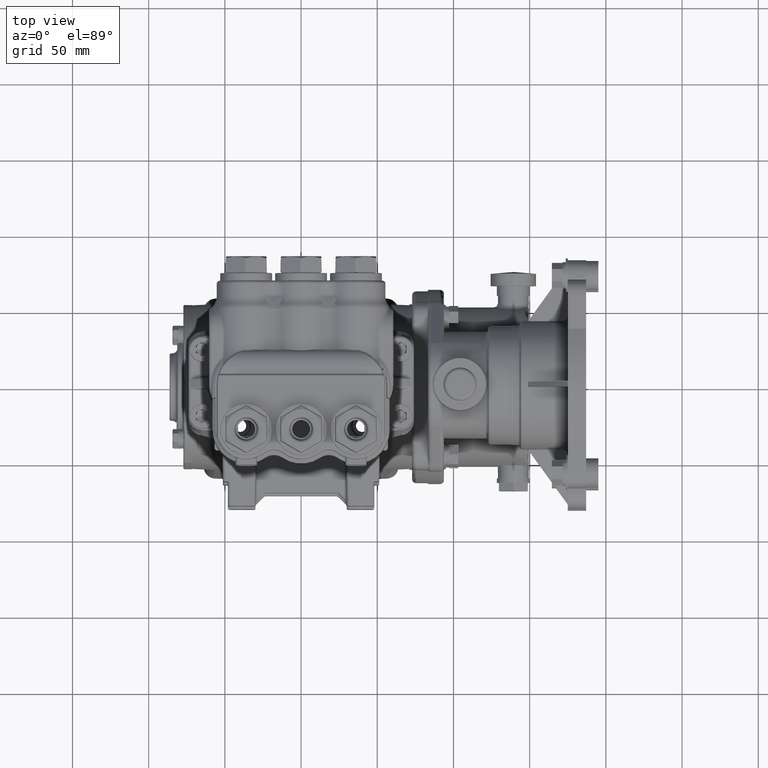
[diagram: clean part render]
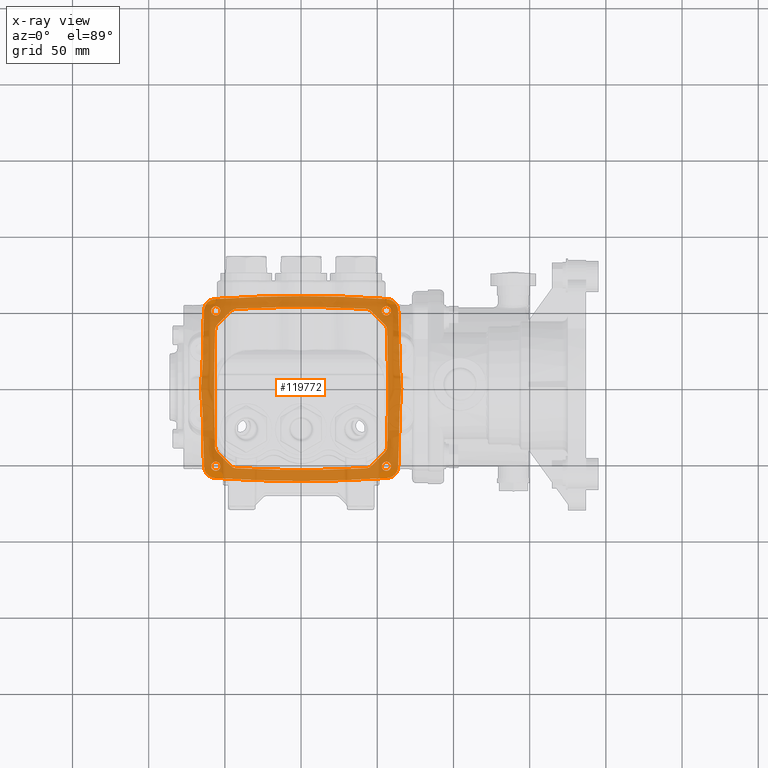
[diagram: x-ray — body ghosted, one internal face saturated and labeled with its STEP entity id]
A machine part, top view, then the same camera in x-ray: the body is ghosted and one INTERNAL B-rep face — a face not visible from any outside direction — is saturated and labeled: STEP entity #119772.
In plain terms, the highlighted planar face has unit normal (0, 0, 1).
Its self-contained STEP definition (entity closure, byte-faithful):
#13 = DIRECTION ( 'NONE',  ( -1.000000000000000000, 1.216804434989171568E-13, 5.302127228476524804E-18 ) ) ;
#74 = DIRECTION ( 'NONE',  ( 1.000000000000000000, 0.000000000000000000, -4.382719174871368785E-18 ) ) ;
#426 = ORIENTED_EDGE ( 'NONE', *, *, #93136, .F. ) ;
#474 = CARTESIAN_POINT ( 'NONE',  ( -2.219825723293632702, -1.530001510944977605, -2.165354330708661124 ) ) ;
#734 = DIRECTION ( 'NONE',  ( 4.382719174871368785E-18, 5.544652149419485530E-17, 1.000000000000000000 ) ) ;
#1004 = CARTESIAN_POINT ( 'NONE',  ( 2.366018722821676690, 2.264324669307097970, -2.165354330708661568 ) ) ;
#1016 = VERTEX_POINT ( 'NONE', #26456 ) ;
#1083 = CIRCLE ( 'NONE', #117644, 30.92519685039370358 ) ;
#1084 = CARTESIAN_POINT ( 'NONE',  ( -2.221682597448173535, -1.515130234257967556, -2.165354330708661568 ) ) ;
#1270 = DIRECTION ( 'NONE',  ( 1.000000000000000000, 0.000000000000000000, 0.000000000000000000 ) ) ;
#1300 = CARTESIAN_POINT ( 'NONE',  ( -0.3714624763966135612, -2.389304942255948028, -2.165354330708661568 ) ) ;
#1378 = CARTESIAN_POINT ( 'NONE',  ( -2.504556795817793446, 2.055155352968323079, -2.165354330708661568 ) ) ;
#1688 = ORIENTED_EDGE ( 'NONE', *, *, #105582, .F. ) ;
#1700 = CARTESIAN_POINT ( 'NONE',  ( -2.196755736665824799, -1.601098465890254952, -2.165354330708661568 ) ) ;
#1995 = CARTESIAN_POINT ( 'NONE',  ( 2.204724409448818534, -2.007874015748031482, -2.165354330708661568 ) ) ;
#2080 = EDGE_CURVE ( 'NONE', #40277, #66505, #118811, .T. ) ;
#2170 = VERTEX_POINT ( 'NONE', #79695 ) ;
#2491 = CARTESIAN_POINT ( 'NONE',  ( -2.086614173228346303, 2.007874015748031482, -2.165354330708661568 ) ) ;
#2588 = CARTESIAN_POINT ( 'NONE',  ( -2.504511574974332522, -2.055465809160681445, -2.165354330708661568 ) ) ;
#3109 = EDGE_CURVE ( 'NONE', #59524, #2170, #61564, .T. ) ;
#3675 = VECTOR ( 'NONE', #16743, 39.37007874015748854 ) ;
#4674 = CARTESIAN_POINT ( 'NONE',  ( 2.507699095000501810, 2.018276345781059522, -2.165354330708661568 ) ) ;
#4792 = B_SPLINE_CURVE_WITH_KNOTS ( 'NONE', 3,
 ( #111564, #16306, #53997, #91747, #92361, #102287, #55235, #92981, #112152, #27392 ),
 .UNSPECIFIED., .F., .F.,
 ( 4, 2, 2, 2, 4 ),
 ( 0.000000000000000000, 0.2500000000000000000, 0.5000000000000000000, 0.7500000000000000000, 1.000000000000000000 ),
 .UNSPECIFIED. ) ;
#5224 = CARTESIAN_POINT ( 'NONE',  ( -2.152598785039741891, 1.660952057778921409, -2.165354330708661568 ) ) ;
#5335 = EDGE_LOOP ( 'NONE', ( #97826, #32603 ) ) ;
#5634 = CARTESIAN_POINT ( 'NONE',  ( 2.504511574974339627, -2.055465809160683666, -2.165354330708661124 ) ) ;
#6064 = AXIS2_PLACEMENT_3D ( 'NONE', #78526, #58147, #11774 ) ;
#6155 = CARTESIAN_POINT ( 'NONE',  ( 0.3714624763966135612, -2.389304942255947584, -2.165354330708661568 ) ) ;
#6191 = EDGE_CURVE ( 'NONE', #41981, #75696, #91401, .T. ) ;
#6828 = AXIS2_PLACEMENT_3D ( 'NONE', #45245, #74282, #74 ) ;
#7457 = CARTESIAN_POINT ( 'NONE',  ( -1.855891039598183134, 2.336065548150338511, -2.165354330708661568 ) ) ;
#7469 = CARTESIAN_POINT ( 'NONE',  ( -2.543265006702944753, 0.6403266331639345665, -2.165354330708661568 ) ) ;
#7572 = CARTESIAN_POINT ( 'NONE',  ( -2.543265006702933650, -0.6403266331650486753, -2.165354330708661568 ) ) ;
#8095 = CARTESIAN_POINT ( 'NONE',  ( -2.543932861997212136, -0.5865920787521244906, -2.165354330708662012 ) ) ;
#8104 = CARTESIAN_POINT ( 'NONE',  ( 2.189577504191285051, -1.614138010126627165, -2.165354330708661124 ) ) ;
#8119 = CARTESIAN_POINT ( 'NONE',  ( 0.7429143685551328202, 2.382658802404135745, -2.165354330708661568 ) ) ;
#9060 = ORIENTED_EDGE ( 'NONE', *, *, #93380, .F. ) ;
#9071 = CARTESIAN_POINT ( 'NONE',  ( 1.775335066388156413, 2.029552431919218858, -2.165354330708661568 ) ) ;
#9165 = CARTESIAN_POINT ( 'NONE',  ( -2.163204215270329467, -1.650379664719830330, -2.165354330708661124 ) ) ;
#9303 = CARTESIAN_POINT ( 'NONE',  ( 2.244982819985745337, -2.308120272099379200, -2.165354330708661568 ) ) ;
#9477 = DIRECTION ( 'NONE',  ( 4.382719174871368785E-18, 5.544652149419485530E-17, 1.000000000000000000 ) ) ;
#9695 = CARTESIAN_POINT ( 'NONE',  ( 1.665298053507368259, 2.061429151741544619, -2.165354330708661568 ) ) ;
#10016 = EDGE_CURVE ( 'NONE', #17053, #27013, #1083, .T. ) ;
#10175 = ORIENTED_EDGE ( 'NONE', *, *, #66754, .T. ) ;
#10581 = VERTEX_POINT ( 'NONE', #36186 ) ;
#10882 = LINE ( 'NONE', #39321, #33163 ) ;
#10907 = CARTESIAN_POINT ( 'NONE',  ( 2.490438297128287903, 2.108490976394182148, -2.165354330708662456 ) ) ;
#11193 = CARTESIAN_POINT ( 'NONE',  ( 1.799393356314523462, -2.013057209752563192, -2.165354330708661124 ) ) ;
#11370 = EDGE_LOOP ( 'NONE', ( #110919, #426 ) ) ;
#11774 = DIRECTION ( 'NONE',  ( -1.000000000000000000, 0.000000000000000000, 0.000000000000000000 ) ) ;
#11874 = CARTESIAN_POINT ( 'NONE',  ( -2.506969314277190275, -2.036892271272477295, -2.165354330708661568 ) ) ;
#11891 = CARTESIAN_POINT ( 'NONE',  ( 2.152598785039734341, -1.660952057778923185, -2.165354330708661568 ) ) ;
#12243 = B_SPLINE_CURVE_WITH_KNOTS ( 'NONE', 3,
 ( #112459, #9165, #30741, #58561, #1700, #85201, #96945, #474, #1084, #76512 ),
 .UNSPECIFIED., .F., .F.,
 ( 4, 2, 2, 2, 4 ),
 ( -1.000000000000000000, -0.7500000000000000000, -0.5000000000000000000, -0.2500000000000000000, -0.000000000000000000 ),
 .UNSPECIFIED. ) ;
#12486 = CARTESIAN_POINT ( 'NONE',  ( -2.476246556831379841, -2.142842966116451198, -2.165354330708661124 ) ) ;
#12627 = ORIENTED_EDGE ( 'NONE', *, *, #2080, .F. ) ;
#13807 = CARTESIAN_POINT ( 'NONE',  ( 2.476258197580702092, 2.142836032510803790, -2.165354330708661124 ) ) ;
#14499 = DIRECTION ( 'NONE',  ( -4.382719174871368785E-18, -5.544652149419485530E-17, -1.000000000000000000 ) ) ;
#14685 = CARTESIAN_POINT ( 'NONE',  ( -1.819865019293829489, 1.992649318428512339, -2.165354330708661568 ) ) ;
#14693 = CARTESIAN_POINT ( 'NONE',  ( -2.322834645669291209, -2.007874015748031482, -2.165354330708661568 ) ) ;
#14783 = EDGE_CURVE ( 'NONE', #112804, #17017, #63745, .T. ) ;
#15002 = CARTESIAN_POINT ( 'NONE',  ( 2.299159994477764979, 2.295707594504621252, -2.165354330708661568 ) ) ;
#15065 = CARTESIAN_POINT ( 'NONE',  ( -2.299159994477765423, 2.295707594504620808, -2.165354330708661568 ) ) ;
#15523 = CARTESIAN_POINT ( 'NONE',  ( 2.467332750831509269, -2.159359728066985618, -2.165354330708661124 ) ) ;
#15722 = CARTESIAN_POINT ( 'NONE',  ( -2.172818252056210930, 1.638785034891005798, -2.165354330708661124 ) ) ;
#15780 = B_SPLINE_CURVE_WITH_KNOTS ( 'NONE', 3,
 ( #104636, #29739, #68690, #21060, #1300, #84808 ),
 .UNSPECIFIED., .F., .F.,
 ( 4, 2, 4 ),
 ( 0.000000000000000000, 0.02829432713783162912, 0.05658865427566325823 ),
 .UNSPECIFIED. ) ;
#15835 = VERTEX_POINT ( 'NONE', #106994 ) ;
#16137 = CARTESIAN_POINT ( 'NONE',  ( 2.349811279969611810, -2.273828208019544217, -2.165354330708661124 ) ) ;
#16306 = CARTESIAN_POINT ( 'NONE',  ( 2.221684838214001978, 1.515053755850700457, -2.165354330708661124 ) ) ;
#16740 = CARTESIAN_POINT ( 'NONE',  ( -2.226399550609211797, -2.309455044778845334, -2.165354330708661124 ) ) ;
#16743 = DIRECTION ( 'NONE',  ( -0.7082089982551068585, 0.7060028433303210393, -3.604152067120824219E-17 ) ) ;
#16744 = CARTESIAN_POINT ( 'NONE',  ( 2.446962882100052195, -2.190037674934417034, -2.165354330708661124 ) ) ;
#16749 = CARTESIAN_POINT ( 'NONE',  ( -2.577239816458734456, -0.2126723048731455901, -2.165354330708661124 ) ) ;
#16844 = CARTESIAN_POINT ( 'NONE',  ( 2.577239816458734456, -0.2126723048731455901, -2.165354330708661124 ) ) ;
#17017 = VERTEX_POINT ( 'NONE', #70605 ) ;
#17053 = VERTEX_POINT ( 'NONE', #54450 ) ;
#17274 = VERTEX_POINT ( 'NONE', #43688 ) ;
#17356 = CARTESIAN_POINT ( 'NONE',  ( 2.208677786958054057, -1.573556101159421017, -2.165354330708661124 ) ) ;
#17454 = CARTESIAN_POINT ( 'NONE',  ( -2.226399550609211797, -2.309455044778845334, -2.165354330708661124 ) ) ;
#18002 = FACE_OUTER_BOUND ( 'NONE', #34758, .T. ) ;
#18044 = CARTESIAN_POINT ( 'NONE',  ( 2.555764106600797891, 0.4270891406804709911, -2.165354330708661124 ) ) ;
#18545 = CARTESIAN_POINT ( 'NONE',  ( 48.97637795275590378, -1.200613654401857639E-16, -2.165354330708661568 ) ) ;
#18629 = B_SPLINE_CURVE_WITH_KNOTS ( 'NONE', 3,
 ( #7469, #119443, #27228, #91582, #34690, #72421, #120666, #110188, #64978, #111404, #25415, #16749, #35915, #110798, #44580, #55066, #8095, #64359 ),
 .UNSPECIFIED., .F., .F.,
 ( 4, 2, 2, 2, 2, 2, 2, 2, 4 ),
 ( 0.000000000000000000, 0.004069019700830752914, 0.008138039401661505828, 0.01220705910249225874, 0.01627607880332301166, 0.02034509850415376631, 0.02441411820498451749, 0.02848313790581526866, 0.03255215760664602331 ),
 .UNSPECIFIED. ) ;
#18706 = CARTESIAN_POINT ( 'NONE',  ( -2.506969276822858195, 2.036893229126701677, -2.165354330708661568 ) ) ;
#19070 = CARTESIAN_POINT ( 'NONE',  ( -48.97637795275590378, -1.200613654401857639E-16, -2.165354330708661124 ) ) ;
#19143 = B_SPLINE_CURVE_WITH_KNOTS ( 'NONE', 3,
 ( #97154, #115096, #41474, #40242, #11193, #79174 ),
 .UNSPECIFIED., .F., .F.,
 ( 4, 2, 4 ),
 ( 0.000000000000000000, 0.5000000000000000000, 1.000000000000000000 ),
 .UNSPECIFIED. ) ;
#19408 = VERTEX_POINT ( 'NONE', #11891 ) ;
#19903 = EDGE_CURVE ( 'NONE', #120912, #15835, #92621, .T. ) ;
#19923 = CARTESIAN_POINT ( 'NONE',  ( -2.498518759619862806, 2.082038469294607896, -2.165354330708661568 ) ) ;
#19924 = DIRECTION ( 'NONE',  ( -4.382719174871368785E-18, -5.544652149419485530E-17, -1.000000000000000000 ) ) ;
#20153 = CARTESIAN_POINT ( 'NONE',  ( 2.446878316306271284, 2.189458419480109885, -2.165354330708660680 ) ) ;
#21059 = CARTESIAN_POINT ( 'NONE',  ( -1.665298053507381582, -2.061429151741539734, -2.165354330708661568 ) ) ;
#21060 = CARTESIAN_POINT ( 'NONE',  ( -0.7429160555722719161, -2.382680048062203237, -2.165354330708661124 ) ) ;
#21198 = VERTEX_POINT ( 'NONE', #122367 ) ;
#21753 = CARTESIAN_POINT ( 'NONE',  ( -2.496376326611512209, -2.091466151007959073, -2.165354330708661124 ) ) ;
#21770 = CIRCLE ( 'NONE', #47460, 0.1181102362204725503 ) ;
#22996 = AXIS2_PLACEMENT_3D ( 'NONE', #48248, #67443, #1270 ) ;
#23669 = CARTESIAN_POINT ( 'NONE',  ( 2.467526665887781245, 2.159020891313296886, -2.165354330708661124 ) ) ;
#23974 = EDGE_CURVE ( 'NONE', #94061, #21198, #96856, .T. ) ;
#25383 = CARTESIAN_POINT ( 'NONE',  ( -1.694168858347929296, 2.059872222132872022, -2.165354330708661568 ) ) ;
#25404 = CARTESIAN_POINT ( 'NONE',  ( 2.409413171279609411, -2.230725825977088572, -2.165354330708660680 ) ) ;
#25415 = CARTESIAN_POINT ( 'NONE',  ( -2.584798791261073259, -0.1056861792405178191, -2.165354330708661568 ) ) ;
#25559 = CARTESIAN_POINT ( 'NONE',  ( -2.349825550757512982, 2.273812584395070502, -2.165354330708661568 ) ) ;
#25742 = CARTESIAN_POINT ( 'NONE',  ( -1.722516782334198693, -2.053050197350273720, -2.165354330708661568 ) ) ;
#26028 = CARTESIAN_POINT ( 'NONE',  ( 2.222123512036451753, -1.500081608862754656, -2.165354330708661568 ) ) ;
#26166 = CARTESIAN_POINT ( 'NONE',  ( -2.435291354646366813, 2.203911179097557405, -2.165354330708661568 ) ) ;
#26280 = AXIS2_PLACEMENT_3D ( 'NONE', #119009, #14499, #52195 ) ;
#26355 = CIRCLE ( 'NONE', #56023, 0.1181102362204725503 ) ;
#26456 = CARTESIAN_POINT ( 'NONE',  ( -2.222123512036451753, -1.500081608862754656, -2.165354330708661568 ) ) ;
#26677 = FACE_BOUND ( 'NONE', #92912, .T. ) ;
#26774 = CARTESIAN_POINT ( 'NONE',  ( -2.316431223136201201, 2.289459300434597999, -2.165354330708661124 ) ) ;
#26966 = CARTESIAN_POINT ( 'NONE',  ( -1.775351250857132968, -2.029543694701740897, -2.165354330708661124 ) ) ;
#27013 = VERTEX_POINT ( 'NONE', #42814 ) ;
#27228 = CARTESIAN_POINT ( 'NONE',  ( -2.547149771677712948, 0.5335505165541405415, -2.165354330708661568 ) ) ;
#27318 = CARTESIAN_POINT ( 'NONE',  ( 2.571859199282208852, 0.2676042894716209597, -2.165354330708661124 ) ) ;
#27392 = CARTESIAN_POINT ( 'NONE',  ( 2.152598785039741891, 1.660952057778921409, -2.165354330708661568 ) ) ;
#27630 = CARTESIAN_POINT ( 'NONE',  ( -2.204724409448818534, -2.007874015748031482, -2.165354330708661568 ) ) ;
#27914 = EDGE_CURVE ( 'NONE', #30680, #111252, #75082, .T. ) ;
#28213 = CARTESIAN_POINT ( 'NONE',  ( 1.722511925836797575, 2.053050820824780853, -2.165354330708661124 ) ) ;
#29739 = CARTESIAN_POINT ( 'NONE',  ( -1.855892260071492661, -2.336067316222200763, -2.165354330708661124 ) ) ;
#29899 = AXIS2_PLACEMENT_3D ( 'NONE', #18545, #47008, #13 ) ;
#30680 = VERTEX_POINT ( 'NONE', #72109 ) ;
#30741 = CARTESIAN_POINT ( 'NONE',  ( -2.172724549754320833, -1.638897227845798499, -2.165354330708661568 ) ) ;
#30894 = LINE ( 'NONE', #97722, #113099 ) ;
#31552 = CARTESIAN_POINT ( 'NONE',  ( 2.543265006702933650, -0.6403266331650486753, -2.165354330708661568 ) ) ;
#32603 = ORIENTED_EDGE ( 'NONE', *, *, #91117, .F. ) ;
#32773 = CARTESIAN_POINT ( 'NONE',  ( 1.855892260071492439, -2.336067316222202983, -2.165354330708661124 ) ) ;
#32938 = CARTESIAN_POINT ( 'NONE',  ( 2.506969276822858639, 2.036893229126701677, -2.165354330708661568 ) ) ;
#33158 = ORIENTED_EDGE ( 'NONE', *, *, #3109, .T. ) ;
#33163 = VECTOR ( 'NONE', #41153, 39.37007874015748143 ) ;
#33201 = VERTEX_POINT ( 'NONE', #93212 ) ;
#33416 = VERTEX_POINT ( 'NONE', #4674 ) ;
#33565 = AXIS2_PLACEMENT_3D ( 'NONE', #27630, #65978, #93220 ) ;
#33571 = DIRECTION ( 'NONE',  ( -4.382719174871368785E-18, -5.544652149419485530E-17, -1.000000000000000000 ) ) ;
#33671 = ORIENTED_EDGE ( 'NONE', *, *, #59764, .T. ) ;
#33857 = EDGE_CURVE ( 'NONE', #10581, #59524, #96324, .T. ) ;
#33866 = VERTEX_POINT ( 'NONE', #7572 ) ;
#34042 = ORIENTED_EDGE ( 'NONE', *, *, #58037, .T. ) ;
#34066 = CARTESIAN_POINT ( 'NONE',  ( -1.485093522122145515, 2.356044648000702679, -2.165354330708660235 ) ) ;
#34223 = CARTESIAN_POINT ( 'NONE',  ( -2.467526665887781245, 2.159020891313295998, -2.165354330708661124 ) ) ;
#34558 = B_SPLINE_CURVE_WITH_KNOTS ( 'NONE', 3,
 ( #74832, #121842, #119415, #110154, #25383, #63730 ),
 .UNSPECIFIED., .F., .F.,
 ( 4, 2, 4 ),
 ( -1.000000000000000000, -0.5000000000000000000, -0.000000000000000000 ),
 .UNSPECIFIED. ) ;
#34605 = CARTESIAN_POINT ( 'NONE',  ( 2.086614173228346303, 2.007874015748031482, -2.165354330708661568 ) ) ;
#34680 = CARTESIAN_POINT ( 'NONE',  ( 2.506969314277190275, -2.036892271272478183, -2.165354330708661568 ) ) ;
#34690 = CARTESIAN_POINT ( 'NONE',  ( -2.561200214332288727, 0.3739337529956902051, -2.165354330708661568 ) ) ;
#34758 = EDGE_LOOP ( 'NONE', ( #94618, #56272, #91576, #97808, #116631, #9060, #12627, #81181, #112567, #64711, #119392, #33671, #112416, #33158 ) ) ;
#34781 = CARTESIAN_POINT ( 'NONE',  ( 2.547149771677712948, 0.5335505165541405415, -2.165354330708661568 ) ) ;
#34833 = CARTESIAN_POINT ( 'NONE',  ( -2.452307318315940066, 2.182010947410366608, -2.165354330708662456 ) ) ;
#35013 = CARTESIAN_POINT ( 'NONE',  ( -1.665298053507381582, -2.061429151741539734, -2.165354330708661568 ) ) ;
#35324 = DIRECTION ( 'NONE',  ( -4.382719174871368785E-18, -5.544652149419485530E-17, -1.000000000000000000 ) ) ;
#35326 = CARTESIAN_POINT ( 'NONE',  ( 1.485093522122145515, 2.356044648000701791, -2.165354330708661124 ) ) ;
#35396 = CARTESIAN_POINT ( 'NONE',  ( 2.586966824328970738, 0.05466901610737712192, -2.165354330708661568 ) ) ;
#35495 = CARTESIAN_POINT ( 'NONE',  ( -2.189739141668258782, 1.613874688228873922, -2.165354330708661568 ) ) ;
#35778 = EDGE_CURVE ( 'NONE', #105928, #47767, #104799, .T. ) ;
#35901 = CARTESIAN_POINT ( 'NONE',  ( -2.226398268440926920, 2.309454876264962042, -2.165354330708661568 ) ) ;
#35915 = CARTESIAN_POINT ( 'NONE',  ( -2.572012682349583468, -0.2660530168385782934, -2.165354330708661568 ) ) ;
#36180 = DIRECTION ( 'NONE',  ( 4.382719174871368785E-18, 5.544652149419485530E-17, 1.000000000000000000 ) ) ;
#36186 = CARTESIAN_POINT ( 'NONE',  ( 2.543265006702944753, 0.6403266331639345665, -2.165354330708661568 ) ) ;
#36613 = CARTESIAN_POINT ( 'NONE',  ( 2.543932861997212136, -0.5865920787521244906, -2.165354330708662012 ) ) ;
#37241 = B_SPLINE_CURVE_WITH_KNOTS ( 'NONE', 3,
 ( #77047, #117699, #107868, #15002, #104954, #61985, #1004, #38727, #98560, #86952, #76434, #20153, #114810, #23669, #13807, #57874, #10907, #79945, #48603, #86321, #32938, #70691 ),
 .UNSPECIFIED., .F., .F.,
 ( 4, 2, 2, 2, 2, 2, 2, 2, 2, 2, 4 ),
 ( 0.000000000000000000, 0.001417687121495785378, 0.002835374242991570756, 0.004253061364487355916, 0.005670748485983141511, 0.006379592046731040814, 0.007088435607478941851, 0.008506122728974730915, 0.009214966289722622411, 0.009923809850470515642, 0.01134149697196631251 ),
 .UNSPECIFIED. ) ;
#37462 = B_SPLINE_CURVE_WITH_KNOTS ( 'NONE', 3,
 ( #96616, #11874, #2588, #21753, #60670, #12486, #40917, #50184, #50794, #87923, #116395, #69383, #55054, #101510, #110175, #43968, #110786, #82274, #71811, #92193, #119430, #16740 ),
 .UNSPECIFIED., .F., .F.,
 ( 4, 2, 2, 2, 2, 2, 2, 2, 2, 2, 4 ),
 ( 2.017058999513409408E-16, 0.001417373402076419668, 0.002834746804152637675, 0.004252120206228855899, 0.005669493608305074123, 0.006378180309343174995, 0.007086867010381276734, 0.008504240412457479345, 0.009212927113495569809, 0.009921613814533660272, 0.01133898721660983946 ),
 .UNSPECIFIED. ) ;
#38127 = EDGE_CURVE ( 'NONE', #17274, #19408, #10882, .T. ) ;
#38459 = DIRECTION ( 'NONE',  ( -1.000000000000000000, 0.000000000000000000, 5.333507996854134523E-18 ) ) ;
#38727 = CARTESIAN_POINT ( 'NONE',  ( 2.395949701857928993, 2.242892435977617893, -2.165354330708661568 ) ) ;
#39321 = CARTESIAN_POINT ( 'NONE',  ( 2.219270343645323162, -1.594488188976376897, -2.165354330708661568 ) ) ;
#39978 = EDGE_LOOP ( 'NONE', ( #120848, #83192 ) ) ;
#40158 = CARTESIAN_POINT ( 'NONE',  ( -2.507699084655221622, -2.018276609678203659, -2.165354330708661568 ) ) ;
#40242 = CARTESIAN_POINT ( 'NONE',  ( 1.775351250857132968, -2.029543694701740897, -2.165354330708661124 ) ) ;
#40277 = VERTEX_POINT ( 'NONE', #56686 ) ;
#40917 = CARTESIAN_POINT ( 'NONE',  ( -2.467332750831502164, -2.159359728066980733, -2.165354330708661568 ) ) ;
#41153 = DIRECTION ( 'NONE',  ( 0.7082089982551051932, 0.7060028433303228157, -4.224928298414653321E-17 ) ) ;
#41474 = CARTESIAN_POINT ( 'NONE',  ( 1.722516782334198693, -2.053050197350273720, -2.165354330708661568 ) ) ;
#41981 = VERTEX_POINT ( 'NONE', #2491 ) ;
#42814 = CARTESIAN_POINT ( 'NONE',  ( -1.665298053507368259, 2.061429151741544619, -2.165354330708661568 ) ) ;
#42896 = VERTEX_POINT ( 'NONE', #121921 ) ;
#43367 = CARTESIAN_POINT ( 'NONE',  ( 2.435460192130133095, -2.204361731283808190, -2.165354330708661124 ) ) ;
#43398 = CARTESIAN_POINT ( 'NONE',  ( 1.855891039598183134, 2.336065548150336291, -2.165354330708661568 ) ) ;
#43516 = CARTESIAN_POINT ( 'NONE',  ( -2.366018722821676690, 2.264324669307097526, -2.165354330708661124 ) ) ;
#43606 = CIRCLE ( 'NONE', #6064, 0.1181102362204725503 ) ;
#43639 = ORIENTED_EDGE ( 'NONE', *, *, #61801, .F. ) ;
#43688 = CARTESIAN_POINT ( 'NONE',  ( 1.819865019293845032, -1.992649318428517002, -2.165354330708661568 ) ) ;
#43871 = CARTESIAN_POINT ( 'NONE',  ( -2.152598785039734341, -1.660952057778923185, -2.165354330708661568 ) ) ;
#43968 = CARTESIAN_POINT ( 'NONE',  ( -2.324611947169684001, -2.285622141269472163, -2.165354330708661568 ) ) ;
#44073 = CARTESIAN_POINT ( 'NONE',  ( 2.561316277943267661, -0.3727956487488476300, -2.165354330708661124 ) ) ;
#44288 = AXIS2_PLACEMENT_3D ( 'NONE', #120062, #35324, #55086 ) ;
#44580 = CARTESIAN_POINT ( 'NONE',  ( -2.555849678708232542, -0.4261577759929520703, -2.165354330708661568 ) ) ;
#45203 = CARTESIAN_POINT ( 'NONE',  ( 2.196755736665824799, -1.601098465890254952, -2.165354330708661568 ) ) ;
#45245 = CARTESIAN_POINT ( 'NONE',  ( 7.003180397897975922E-33, -28.81889763779527414, -2.165354330708659791 ) ) ;
#45901 = CARTESIAN_POINT ( 'NONE',  ( 2.584672947388187314, 0.1079688259028910441, -2.165354330708661124 ) ) ;
#47008 = DIRECTION ( 'NONE',  ( 4.382719174871368785E-18, 5.544652149419485530E-17, 1.000000000000000000 ) ) ;
#47460 = AXIS2_PLACEMENT_3D ( 'NONE', #92267, #84193, #83575 ) ;
#47767 = VERTEX_POINT ( 'NONE', #81839 ) ;
#47990 = CIRCLE ( 'NONE', #26280, 51.22047244094488150 ) ;
#48153 = CIRCLE ( 'NONE', #62007, 51.52362204724409622 ) ;
#48192 = ORIENTED_EDGE ( 'NONE', *, *, #14783, .T. ) ;
#48248 = CARTESIAN_POINT ( 'NONE',  ( -2.204724409448818534, -2.007874015748031482, -2.165354330708661568 ) ) ;
#48603 = CARTESIAN_POINT ( 'NONE',  ( 2.498518759619863250, 2.082038469294607008, -2.165354330708661124 ) ) ;
#50097 = DIRECTION ( 'NONE',  ( -4.382719174871368785E-18, -5.544652149419485530E-17, -1.000000000000000000 ) ) ;
#50184 = CARTESIAN_POINT ( 'NONE',  ( -2.446962882100044201, -2.190037674934412149, -2.165354330708661124 ) ) ;
#50794 = CARTESIAN_POINT ( 'NONE',  ( -2.435460192130129986, -2.204361731283805970, -2.165354330708660680 ) ) ;
#51585 = CARTESIAN_POINT ( 'NONE',  ( -5.806167078742581744E-34, 2.389304932947936333, -2.165354330708661568 ) ) ;
#52195 = DIRECTION ( 'NONE',  ( 1.000000000000000000, 0.000000000000000000, -5.333507996854134523E-18 ) ) ;
#52790 = EDGE_CURVE ( 'NONE', #47767, #33416, #37241, .T. ) ;
#52866 = ORIENTED_EDGE ( 'NONE', *, *, #114965, .T. ) ;
#53224 = CARTESIAN_POINT ( 'NONE',  ( 2.388121428136718016, -2.248513551110576714, -2.165354330708661124 ) ) ;
#53822 = CARTESIAN_POINT ( 'NONE',  ( -5.806167078742581744E-34, 2.389304932947936333, -2.165354330708661568 ) ) ;
#53944 = EDGE_CURVE ( 'NONE', #42896, #66733, #85642, .T. ) ;
#53997 = CARTESIAN_POINT ( 'NONE',  ( 2.219844884467144119, 1.529848888678501106, -2.165354330708661568 ) ) ;
#54165 = B_SPLINE_CURVE_WITH_KNOTS ( 'NONE', 3,
 ( #53822, #120654, #120031, #34066, #7457, #35901 ),
 .UNSPECIFIED., .F., .F.,
 ( 4, 2, 4 ),
 ( 4.077884107204853351E-25, 0.02830452656250993793, 0.05660905312501987585 ),
 .UNSPECIFIED. ) ;
#54449 = CARTESIAN_POINT ( 'NONE',  ( 2.324611947169681336, -2.285622141269469054, -2.165354330708661124 ) ) ;
#54450 = CARTESIAN_POINT ( 'NONE',  ( 1.665298053507368259, 2.061429151741544619, -2.165354330708661568 ) ) ;
#54507 = PLANE ( 'NONE',  #6828 ) ;
#54603 = CARTESIAN_POINT ( 'NONE',  ( -2.429114812346702568, 2.210929334946595493, -2.165354330708661124 ) ) ;
#54999 = CIRCLE ( 'NONE', #64907, 51.22047244094488150 ) ;
#55054 = CARTESIAN_POINT ( 'NONE',  ( -2.388121428136717128, -2.248513551110574937, -2.165354330708661124 ) ) ;
#55066 = CARTESIAN_POINT ( 'NONE',  ( -2.547179575223919912, -0.5330576677038848521, -2.165354330708661124 ) ) ;
#55086 = DIRECTION ( 'NONE',  ( -1.000000000000000000, 0.000000000000000000, 0.000000000000000000 ) ) ;
#55126 = EDGE_CURVE ( 'NONE', #33201, #17274, #19143, .T. ) ;
#55169 = CARTESIAN_POINT ( 'NONE',  ( 2.587034883247977035, -0.05213171969899274560, -2.165354330708661124 ) ) ;
#55235 = CARTESIAN_POINT ( 'NONE',  ( 2.189739141668258782, 1.613874688228873922, -2.165354330708661568 ) ) ;
#56023 = AXIS2_PLACEMENT_3D ( 'NONE', #78530, #50097, #116297 ) ;
#56272 = ORIENTED_EDGE ( 'NONE', *, *, #23974, .T. ) ;
#56276 = CARTESIAN_POINT ( 'NONE',  ( 2.289817794028676357, -2.298164523753958299, -2.165354330708661124 ) ) ;
#56329 = FACE_BOUND ( 'NONE', #11370, .T. ) ;
#56432 = ORIENTED_EDGE ( 'NONE', *, *, #38127, .T. ) ;
#56562 = ORIENTED_EDGE ( 'NONE', *, *, #86699, .T. ) ;
#56686 = CARTESIAN_POINT ( 'NONE',  ( -2.507699095000501810, 2.018276345781059522, -2.165354330708661568 ) ) ;
#56886 = CARTESIAN_POINT ( 'NONE',  ( 2.298606430290601743, -2.295446092816229022, -2.165354330708661124 ) ) ;
#56938 = FACE_BOUND ( 'NONE', #39978, .T. ) ;
#57874 = CARTESIAN_POINT ( 'NONE',  ( 2.487175133690012974, 2.117236140601214789, -2.165354330708661568 ) ) ;
#57983 = B_SPLINE_CURVE_WITH_KNOTS ( 'NONE', 3,
 ( #110942, #80626, #71966, #15065, #26774, #25559, #43516, #81226, #119583, #54603, #26166, #63898, #34833, #34223, #109729, #62649, #100440, #67553, #19923, #1378, #18706, #66334 ),
 .UNSPECIFIED., .F., .F.,
 ( 4, 2, 2, 2, 2, 2, 2, 2, 2, 2, 4 ),
 ( 0.000000000000000000, 0.001417687121495792967, 0.002835374242991585934, 0.004253061364487378468, 0.005670748485983171869, 0.006379592046731067702, 0.007088435607478963535, 0.008506122728974756936, 0.009214966289722644963, 0.009923809850470531255, 0.01134149697196631772 ),
 .UNSPECIFIED. ) ;
#58037 = EDGE_CURVE ( 'NONE', #100632, #110630, #54999, .T. ) ;
#58147 = DIRECTION ( 'NONE',  ( -4.382719174871368785E-18, -5.544652149419485530E-17, -1.000000000000000000 ) ) ;
#58312 = B_SPLINE_CURVE_WITH_KNOTS ( 'NONE', 3,
 ( #74871, #74241, #112621, #8104, #45203, #17356, #101530, #72430, #63134, #26028 ),
 .UNSPECIFIED., .F., .F.,
 ( 4, 2, 2, 2, 4 ),
 ( 0.000000000000000000, 0.2500000000000000000, 0.5000000000000000000, 0.7500000000000000000, 1.000000000000000000 ),
 .UNSPECIFIED. ) ;
#58561 = CARTESIAN_POINT ( 'NONE',  ( -2.189577504191285051, -1.614138010126627165, -2.165354330708661124 ) ) ;
#58743 = CARTESIAN_POINT ( 'NONE',  ( -2.152598785039741891, 1.660952057778921409, -2.165354330708661568 ) ) ;
#58846 = B_SPLINE_CURVE_WITH_KNOTS ( 'NONE', 3,
 ( #63747, #34680, #5634, #108980, #100278, #61895, #15523, #16744, #43367, #82278, #25404, #81077, #53224, #100905, #16137, #54449, #92197, #56886, #56276, #74227, #9303, #66784 ),
 .UNSPECIFIED., .F., .F.,
 ( 4, 2, 2, 2, 2, 2, 2, 2, 2, 2, 4 ),
 ( 2.017058999513409408E-16, 0.001417373402076405357, 0.002834746804152609052, 0.004252120206228813398, 0.005669493608305016877, 0.006378180309343119483, 0.007086867010381220355, 0.008504240412457404752, 0.009212927113495503889, 0.009921613814533601292, 0.01133898721660979783 ),
 .UNSPECIFIED. ) ;
#58864 = CARTESIAN_POINT ( 'NONE',  ( 48.97637795275590378, -1.200613654401857639E-16, -2.165354330708661568 ) ) ;
#59524 = VERTEX_POINT ( 'NONE', #31552 ) ;
#59764 = EDGE_CURVE ( 'NONE', #33416, #10581, #48153, .T. ) ;
#59791 = AXIS2_PLACEMENT_3D ( 'NONE', #119691, #36180, #72674 ) ;
#60013 = CARTESIAN_POINT ( 'NONE',  ( 2.322834645669291209, -2.007874015748031482, -2.165354330708661568 ) ) ;
#60670 = CARTESIAN_POINT ( 'NONE',  ( -2.490721398707856249, -2.108940945489633734, -2.165354330708661568 ) ) ;
#61192 = DIRECTION ( 'NONE',  ( 4.382719174871368785E-18, 5.544652149419485530E-17, 1.000000000000000000 ) ) ;
#61564 = CIRCLE ( 'NONE', #77363, 51.52362204724409622 ) ;
#61801 = EDGE_CURVE ( 'NONE', #15835, #63233, #30894, .T. ) ;
#61895 = CARTESIAN_POINT ( 'NONE',  ( 2.476246556831378953, -2.142842966116449421, -2.165354330708661568 ) ) ;
#61985 = CARTESIAN_POINT ( 'NONE',  ( 2.349825550757514758, 2.273812584395075831, -2.165354330708661124 ) ) ;
#62007 = AXIS2_PLACEMENT_3D ( 'NONE', #19070, #83420, #121173 ) ;
#62599 = CARTESIAN_POINT ( 'NONE',  ( 2.543265006702944753, 0.6403266331639345665, -2.165354330708661568 ) ) ;
#62649 = CARTESIAN_POINT ( 'NONE',  ( -2.487175133690011197, 2.117236140601214345, -2.165354330708661124 ) ) ;
#62695 = CARTESIAN_POINT ( 'NONE',  ( -2.222123512036461079, 1.500081608862758653, -2.165354330708661568 ) ) ;
#63071 = CARTESIAN_POINT ( 'NONE',  ( -2.322834645669291209, 2.007874015748031482, -2.165354330708661568 ) ) ;
#63134 = CARTESIAN_POINT ( 'NONE',  ( 2.221682597448173535, -1.515130234257967556, -2.165354330708661568 ) ) ;
#63233 = VERTEX_POINT ( 'NONE', #43871 ) ;
#63475 = CARTESIAN_POINT ( 'NONE',  ( -1.799393356314523462, -2.013057209752563192, -2.165354330708661124 ) ) ;
#63730 = CARTESIAN_POINT ( 'NONE',  ( -1.665298053507368259, 2.061429151741544619, -2.165354330708661568 ) ) ;
#63745 = LINE ( 'NONE', #101514, #3675 ) ;
#63747 = CARTESIAN_POINT ( 'NONE',  ( 2.507699084655221622, -2.018276609678203659, -2.165354330708661568 ) ) ;
#63898 = CARTESIAN_POINT ( 'NONE',  ( -2.446878316306273504, 2.189458419480110329, -2.165354330708661568 ) ) ;
#64175 = ORIENTED_EDGE ( 'NONE', *, *, #55126, .T. ) ;
#64359 = CARTESIAN_POINT ( 'NONE',  ( -2.543265006702933650, -0.6403266331650486753, -2.165354330708661568 ) ) ;
#64711 = ORIENTED_EDGE ( 'NONE', *, *, #35778, .T. ) ;
#64907 = AXIS2_PLACEMENT_3D ( 'NONE', #85454, #734, #38459 ) ;
#64978 = CARTESIAN_POINT ( 'NONE',  ( -2.586966824328970738, 0.05466901610737712192, -2.165354330708661568 ) ) ;
#65626 = CARTESIAN_POINT ( 'NONE',  ( 2.222123512036461079, 1.500081608862758653, -2.165354330708661568 ) ) ;
#65978 = DIRECTION ( 'NONE',  ( 4.382719174871368785E-18, 5.544652149419485530E-17, 1.000000000000000000 ) ) ;
#66113 = CARTESIAN_POINT ( 'NONE',  ( 7.003180397897975922E-33, -28.81889763779527414, -2.165354330708659791 ) ) ;
#66334 = CARTESIAN_POINT ( 'NONE',  ( -2.507699095000501810, 2.018276345781059522, -2.165354330708661568 ) ) ;
#66505 = VERTEX_POINT ( 'NONE', #112649 ) ;
#66577 = EDGE_CURVE ( 'NONE', #111252, #30680, #76317, .T. ) ;
#66712 = DIRECTION ( 'NONE',  ( -1.000000000000000000, 0.000000000000000000, 0.000000000000000000 ) ) ;
#66733 = VERTEX_POINT ( 'NONE', #58743 ) ;
#66754 = EDGE_CURVE ( 'NONE', #120912, #33201, #68394, .T. ) ;
#66784 = CARTESIAN_POINT ( 'NONE',  ( 2.226399550609211797, -2.309455044778845334, -2.165354330708661568 ) ) ;
#67443 = DIRECTION ( 'NONE',  ( 4.382719174871368785E-18, 5.544652149419485530E-17, 1.000000000000000000 ) ) ;
#67553 = CARTESIAN_POINT ( 'NONE',  ( -2.496100249859894760, 2.090913945822137521, -2.165354330708661568 ) ) ;
#68394 = CIRCLE ( 'NONE', #119786, 30.92519685039370358 ) ;
#68616 = VERTEX_POINT ( 'NONE', #17454 ) ;
#68690 = CARTESIAN_POINT ( 'NONE',  ( -1.485094011898408617, -2.356032690953610231, -2.165354330708661568 ) ) ;
#69105 = AXIS2_PLACEMENT_3D ( 'NONE', #58864, #9477, #103510 ) ;
#69383 = CARTESIAN_POINT ( 'NONE',  ( -2.395374267148706160, -2.242822968506204440, -2.165354330708661124 ) ) ;
#70002 = VERTEX_POINT ( 'NONE', #40158 ) ;
#70526 = CARTESIAN_POINT ( 'NONE',  ( 0.7429160555722730264, -2.382680048062204570, -2.165354330708660235 ) ) ;
#70605 = CARTESIAN_POINT ( 'NONE',  ( 1.819865019293829489, 1.992649318428512339, -2.165354330708661568 ) ) ;
#70691 = CARTESIAN_POINT ( 'NONE',  ( 2.507699095000501810, 2.018276345781059522, -2.165354330708661568 ) ) ;
#70907 = VERTEX_POINT ( 'NONE', #85261 ) ;
#71666 = LINE ( 'NONE', #119281, #97155 ) ;
#71811 = CARTESIAN_POINT ( 'NONE',  ( -2.289817794028677245, -2.298164523753958743, -2.165354330708661124 ) ) ;
#71966 = CARTESIAN_POINT ( 'NONE',  ( -2.263466885730227141, 2.305047135850797790, -2.165354330708661568 ) ) ;
#72109 = CARTESIAN_POINT ( 'NONE',  ( -2.086614173228346303, -2.007874015748031482, -2.165354330708661568 ) ) ;
#72421 = CARTESIAN_POINT ( 'NONE',  ( -2.571859199282208852, 0.2676042894716209597, -2.165354330708661124 ) ) ;
#72430 = CARTESIAN_POINT ( 'NONE',  ( 2.219825723293632702, -1.530001510944977605, -2.165354330708661124 ) ) ;
#72517 = CARTESIAN_POINT ( 'NONE',  ( 2.584798791261073259, -0.1056861792405178191, -2.165354330708661568 ) ) ;
#72674 = DIRECTION ( 'NONE',  ( 1.000000000000000000, 0.000000000000000000, 0.000000000000000000 ) ) ;
#73280 = EDGE_LOOP ( 'NONE', ( #91010, #10175, #64175, #56432, #56562, #34042, #52866, #48192, #118061, #105179, #87002, #109958, #74806, #121118, #1688, #43639 ) ) ;
#73767 = CARTESIAN_POINT ( 'NONE',  ( -2.226398268440926920, 2.309454876264962042, -2.165354330708661568 ) ) ;
#74227 = CARTESIAN_POINT ( 'NONE',  ( 2.263153763336886559, -2.305104183887488833, -2.165354330708661124 ) ) ;
#74241 = CARTESIAN_POINT ( 'NONE',  ( 2.163204215270329467, -1.650379664719830330, -2.165354330708661124 ) ) ;
#74282 = DIRECTION ( 'NONE',  ( 4.382719174871368785E-18, 5.544652149419484913E-17, 1.000000000000000000 ) ) ;
#74325 = CARTESIAN_POINT ( 'NONE',  ( 2.572012682349583468, -0.2660530168385782934, -2.165354330708661568 ) ) ;
#74337 = VERTEX_POINT ( 'NONE', #60013 ) ;
#74806 = ORIENTED_EDGE ( 'NONE', *, *, #53944, .F. ) ;
#74832 = CARTESIAN_POINT ( 'NONE',  ( -1.819865019293829489, 1.992649318428512339, -2.165354330708661568 ) ) ;
#74871 = CARTESIAN_POINT ( 'NONE',  ( 2.152598785039734341, -1.660952057778923185, -2.165354330708661568 ) ) ;
#75082 = CIRCLE ( 'NONE', #33565, 0.1181102362204725503 ) ;
#75696 = VERTEX_POINT ( 'NONE', #63071 ) ;
#76317 = CIRCLE ( 'NONE', #22996, 0.1181102362204725503 ) ;
#76423 = CARTESIAN_POINT ( 'NONE',  ( 1.694168858347929296, 2.059872222132872022, -2.165354330708661568 ) ) ;
#76434 = CARTESIAN_POINT ( 'NONE',  ( 2.435291354646364592, 2.203911179097556960, -2.165354330708661568 ) ) ;
#76512 = CARTESIAN_POINT ( 'NONE',  ( -2.222123512036451753, -1.500081608862754656, -2.165354330708661568 ) ) ;
#76591 = DIRECTION ( 'NONE',  ( 4.382719174871368785E-18, 5.544652149419485530E-17, 1.000000000000000000 ) ) ;
#77047 = CARTESIAN_POINT ( 'NONE',  ( 2.226398268440926920, 2.309454876264962042, -2.165354330708661568 ) ) ;
#77363 = AXIS2_PLACEMENT_3D ( 'NONE', #79367, #33571, #117129 ) ;
#77658 = ORIENTED_EDGE ( 'NONE', *, *, #27914, .T. ) ;
#77922 = CARTESIAN_POINT ( 'NONE',  ( -7.003180397897975922E-33, 28.81889763779527414, -2.165354330708663344 ) ) ;
#78026 = DIRECTION ( 'NONE',  ( -1.000000000000000000, 0.000000000000000000, 0.000000000000000000 ) ) ;
#78526 = CARTESIAN_POINT ( 'NONE',  ( 2.204724409448818534, 2.007874015748031482, -2.165354330708661568 ) ) ;
#78530 = CARTESIAN_POINT ( 'NONE',  ( 2.204724409448818534, 2.007874015748031482, -2.165354330708661568 ) ) ;
#78543 = CARTESIAN_POINT ( 'NONE',  ( 5.806167078742583454E-34, -2.389304932947937665, -2.165354330708661568 ) ) ;
#79174 = CARTESIAN_POINT ( 'NONE',  ( 1.819865019293845032, -1.992649318428517002, -2.165354330708661568 ) ) ;
#79367 = CARTESIAN_POINT ( 'NONE',  ( -48.97637795275590378, -1.200613654401857639E-16, -2.165354330708661124 ) ) ;
#79515 = CIRCLE ( 'NONE', #89431, 0.1181102362204725503 ) ;
#79695 = CARTESIAN_POINT ( 'NONE',  ( 2.507699084655221622, -2.018276609678203659, -2.165354330708661568 ) ) ;
#79945 = CARTESIAN_POINT ( 'NONE',  ( 2.496100249859891651, 2.090913945822136188, -2.165354330708661124 ) ) ;
#80121 = EDGE_CURVE ( 'NONE', #70002, #68616, #37462, .T. ) ;
#80626 = CARTESIAN_POINT ( 'NONE',  ( -2.244982747217354913, 2.308120096729284310, -2.165354330708662012 ) ) ;
#80664 = CARTESIAN_POINT ( 'NONE',  ( -2.208785680751318203, 1.573256141254134599, -2.165354330708661568 ) ) ;
#81077 = CARTESIAN_POINT ( 'NONE',  ( 2.395374267148707492, -2.242822968506206216, -2.165354330708661124 ) ) ;
#81181 = ORIENTED_EDGE ( 'NONE', *, *, #105164, .F. ) ;
#81226 = CARTESIAN_POINT ( 'NONE',  ( -2.395949701857929437, 2.242892435977617893, -2.165354330708661568 ) ) ;
#81718 = CARTESIAN_POINT ( 'NONE',  ( 2.226398268440926920, 2.309454876264962042, -2.165354330708661568 ) ) ;
#81784 = CARTESIAN_POINT ( 'NONE',  ( 2.543265006702933650, -0.6403266331650486753, -2.165354330708661568 ) ) ;
#81839 = CARTESIAN_POINT ( 'NONE',  ( 2.226398268440926920, 2.309454876264962042, -2.165354330708661568 ) ) ;
#82274 = CARTESIAN_POINT ( 'NONE',  ( -2.298606430290602631, -2.295446092816230799, -2.165354330708662012 ) ) ;
#82278 = CARTESIAN_POINT ( 'NONE',  ( 2.416204707833615739, -2.224306327292284280, -2.165354330708660680 ) ) ;
#82303 = CARTESIAN_POINT ( 'NONE',  ( 0.3714619736455342935, 2.389304923639928635, -2.165354330708661124 ) ) ;
#82616 = CARTESIAN_POINT ( 'NONE',  ( -1.819865019293845032, -1.992649318428517002, -2.165354330708661568 ) ) ;
#83192 = ORIENTED_EDGE ( 'NONE', *, *, #111542, .T. ) ;
#83420 = DIRECTION ( 'NONE',  ( -4.382719174871368785E-18, -5.544652149419485530E-17, -1.000000000000000000 ) ) ;
#83575 = DIRECTION ( 'NONE',  ( 1.000000000000000000, 0.000000000000000000, 0.000000000000000000 ) ) ;
#84171 = FACE_BOUND ( 'NONE', #5335, .T. ) ;
#84193 = DIRECTION ( 'NONE',  ( 4.382719174871368785E-18, 5.544652149419485530E-17, 1.000000000000000000 ) ) ;
#84808 = CARTESIAN_POINT ( 'NONE',  ( 5.806167078742583454E-34, -2.389304932947937665, -2.165354330708661568 ) ) ;
#85167 = CARTESIAN_POINT ( 'NONE',  ( 2.222123512036451753, -1.500081608862754656, -2.165354330708661568 ) ) ;
#85201 = CARTESIAN_POINT ( 'NONE',  ( -2.208677786958054057, -1.573556101159421017, -2.165354330708661124 ) ) ;
#85261 = CARTESIAN_POINT ( 'NONE',  ( 2.322834645669291209, 2.007874015748031482, -2.165354330708661568 ) ) ;
#85454 = CARTESIAN_POINT ( 'NONE',  ( -48.97637795275590378, -1.200613654401857639E-16, -2.165354330708661124 ) ) ;
#85564 = VERTEX_POINT ( 'NONE', #73767 ) ;
#85642 = B_SPLINE_CURVE_WITH_KNOTS ( 'NONE', 3,
 ( #62695, #89967, #100482, #91772, #80664, #120244, #35495, #15722, #110986, #5224 ),
 .UNSPECIFIED., .F., .F.,
 ( 4, 2, 2, 2, 4 ),
 ( -1.000000000000000000, -0.7500000000000000000, -0.5000000000000000000, -0.2500000000000000000, -0.000000000000000000 ),
 .UNSPECIFIED. ) ;
#85819 = EDGE_CURVE ( 'NONE', #105928, #85564, #54165, .T. ) ;
#86321 = CARTESIAN_POINT ( 'NONE',  ( 2.504556795817793446, 2.055155352968323079, -2.165354330708661124 ) ) ;
#86699 = EDGE_CURVE ( 'NONE', #19408, #100632, #58312, .T. ) ;
#86952 = CARTESIAN_POINT ( 'NONE',  ( 2.429114812346700791, 2.210929334946594604, -2.165354330708661568 ) ) ;
#87002 = ORIENTED_EDGE ( 'NONE', *, *, #104326, .F. ) ;
#87923 = CARTESIAN_POINT ( 'NONE',  ( -2.416204707833613075, -2.224306327292282504, -2.165354330708660680 ) ) ;
#88899 = CARTESIAN_POINT ( 'NONE',  ( 2.152598785039741891, 1.660952057778921409, -2.165354330708661568 ) ) ;
#89431 = AXIS2_PLACEMENT_3D ( 'NONE', #1995, #19924, #78026 ) ;
#89967 = CARTESIAN_POINT ( 'NONE',  ( -2.221684838214001978, 1.515053755850700457, -2.165354330708661124 ) ) ;
#91002 = CARTESIAN_POINT ( 'NONE',  ( -5.806167078742581744E-34, 2.389304932947936333, -2.165354330708661568 ) ) ;
#91010 = ORIENTED_EDGE ( 'NONE', *, *, #19903, .F. ) ;
#91069 = CARTESIAN_POINT ( 'NONE',  ( 2.577078491238841806, 0.2144346540354758746, -2.165354330708661568 ) ) ;
#91117 = EDGE_CURVE ( 'NONE', #70907, #121046, #43606, .T. ) ;
#91401 = CIRCLE ( 'NONE', #59791, 0.1181102362204725503 ) ;
#91576 = ORIENTED_EDGE ( 'NONE', *, *, #111720, .F. ) ;
#91582 = CARTESIAN_POINT ( 'NONE',  ( -2.555764106600797891, 0.4270891406804709911, -2.165354330708661124 ) ) ;
#91747 = CARTESIAN_POINT ( 'NONE',  ( 2.213359582976154094, 1.559097908158796342, -2.165354330708661124 ) ) ;
#91772 = CARTESIAN_POINT ( 'NONE',  ( -2.213359582976154094, 1.559097908158796342, -2.165354330708661124 ) ) ;
#92193 = CARTESIAN_POINT ( 'NONE',  ( -2.263153763336887003, -2.305104183887489278, -2.165354330708661124 ) ) ;
#92197 = CARTESIAN_POINT ( 'NONE',  ( 2.315981751020904866, -2.289185744994252314, -2.165354330708661124 ) ) ;
#92267 = CARTESIAN_POINT ( 'NONE',  ( -2.204724409448818534, 2.007874015748031482, -2.165354330708661568 ) ) ;
#92290 = CARTESIAN_POINT ( 'NONE',  ( 2.543929612325298795, 0.5868535420895685251, -2.165354330708661124 ) ) ;
#92361 = CARTESIAN_POINT ( 'NONE',  ( 2.208785680751318203, 1.573256141254134599, -2.165354330708661568 ) ) ;
#92621 = B_SPLINE_CURVE_WITH_KNOTS ( 'NONE', 3,
 ( #35013, #110521, #25742, #26966, #63475, #82616 ),
 .UNSPECIFIED., .F., .F.,
 ( 4, 2, 4 ),
 ( -1.000000000000000000, -0.5000000000000000000, -0.000000000000000000 ),
 .UNSPECIFIED. ) ;
#92912 = EDGE_LOOP ( 'NONE', ( #77658, #119082 ) ) ;
#92914 = CARTESIAN_POINT ( 'NONE',  ( 2.547179575223919912, -0.5330576677038848521, -2.165354330708661124 ) ) ;
#92981 = CARTESIAN_POINT ( 'NONE',  ( 2.172818252056210930, 1.638785034891005798, -2.165354330708661124 ) ) ;
#93136 = EDGE_CURVE ( 'NONE', #74337, #111704, #79515, .T. ) ;
#93212 = CARTESIAN_POINT ( 'NONE',  ( 1.665298053507381582, -2.061429151741539734, -2.165354330708661568 ) ) ;
#93220 = DIRECTION ( 'NONE',  ( 1.000000000000000000, 0.000000000000000000, 0.000000000000000000 ) ) ;
#93380 = EDGE_CURVE ( 'NONE', #66505, #33866, #18629, .T. ) ;
#94023 = EDGE_CURVE ( 'NONE', #1016, #42896, #47990, .T. ) ;
#94061 = VERTEX_POINT ( 'NONE', #112792 ) ;
#94618 = ORIENTED_EDGE ( 'NONE', *, *, #108156, .T. ) ;
#96241 = CARTESIAN_POINT ( 'NONE',  ( 1.819865019293829489, 1.992649318428512339, -2.165354330708661568 ) ) ;
#96324 = B_SPLINE_CURVE_WITH_KNOTS ( 'NONE', 3,
 ( #62599, #92290, #34781, #18044, #120148, #27318, #91069, #45901, #35396, #55169, #72517, #16844, #74325, #44073, #112084, #92914, #36613, #81784 ),
 .UNSPECIFIED., .F., .F.,
 ( 4, 2, 2, 2, 2, 2, 2, 2, 4 ),
 ( 0.000000000000000000, 0.004069019700830752914, 0.008138039401661505828, 0.01220705910249225874, 0.01627607880332301166, 0.02034509850415376631, 0.02441411820498451749, 0.02848313790581526866, 0.03255215760664602331 ),
 .UNSPECIFIED. ) ;
#96484 = DIRECTION ( 'NONE',  ( -0.7082089982551051932, 0.7060028433303228157, -3.604152067120835312E-17 ) ) ;
#96616 = CARTESIAN_POINT ( 'NONE',  ( -2.507699084655221622, -2.018276609678203659, -2.165354330708661568 ) ) ;
#96856 = B_SPLINE_CURVE_WITH_KNOTS ( 'NONE', 3,
 ( #98998, #32773, #99597, #70526, #6155, #78543 ),
 .UNSPECIFIED., .F., .F.,
 ( 4, 2, 4 ),
 ( 0.000000000000000000, 0.02829432713783162912, 0.05658865427566325823 ),
 .UNSPECIFIED. ) ;
#96945 = CARTESIAN_POINT ( 'NONE',  ( -2.213280055852036465, -1.559389366902613316, -2.165354330708661568 ) ) ;
#97154 = CARTESIAN_POINT ( 'NONE',  ( 1.665298053507381582, -2.061429151741539734, -2.165354330708661568 ) ) ;
#97155 = VECTOR ( 'NONE', #118060, 39.37007874015748854 ) ;
#97722 = CARTESIAN_POINT ( 'NONE',  ( -2.219270343645323162, -1.594488188976376897, -2.165354330708661568 ) ) ;
#97808 = ORIENTED_EDGE ( 'NONE', *, *, #80121, .F. ) ;
#97826 = ORIENTED_EDGE ( 'NONE', *, *, #110819, .F. ) ;
#98560 = CARTESIAN_POINT ( 'NONE',  ( 2.409857958945318845, 2.230889108303421686, -2.165354330708661568 ) ) ;
#98998 = CARTESIAN_POINT ( 'NONE',  ( 2.226399550609211797, -2.309455044778845334, -2.165354330708661568 ) ) ;
#99597 = CARTESIAN_POINT ( 'NONE',  ( 1.485094011898409727, -2.356032690953608455, -2.165354330708661124 ) ) ;
#100278 = CARTESIAN_POINT ( 'NONE',  ( 2.490721398707852252, -2.108940945489631957, -2.165354330708660680 ) ) ;
#100440 = CARTESIAN_POINT ( 'NONE',  ( -2.490438297128288792, 2.108490976394181704, -2.165354330708661568 ) ) ;
#100482 = CARTESIAN_POINT ( 'NONE',  ( -2.219844884467144119, 1.529848888678501106, -2.165354330708661568 ) ) ;
#100632 = VERTEX_POINT ( 'NONE', #85167 ) ;
#100905 = CARTESIAN_POINT ( 'NONE',  ( 2.365679031425900192, -2.264536306372213481, -2.165354330708660235 ) ) ;
#101510 = CARTESIAN_POINT ( 'NONE',  ( -2.365679031425900636, -2.264536306372213925, -2.165354330708661568 ) ) ;
#101514 = CARTESIAN_POINT ( 'NONE',  ( 2.219270343645315169, 1.594488188976378007, -2.165354330708661568 ) ) ;
#101530 = CARTESIAN_POINT ( 'NONE',  ( 2.213280055852036465, -1.559389366902613316, -2.165354330708661568 ) ) ;
#102287 = CARTESIAN_POINT ( 'NONE',  ( 2.196897490499831740, 1.600820636837663624, -2.165354330708661124 ) ) ;
#103510 = DIRECTION ( 'NONE',  ( -1.000000000000000000, 0.000000000000000000, 5.302127228476524804E-18 ) ) ;
#104326 = EDGE_CURVE ( 'NONE', #119837, #27013, #34558, .T. ) ;
#104617 = FACE_BOUND ( 'NONE', #73280, .T. ) ;
#104636 = CARTESIAN_POINT ( 'NONE',  ( -2.226399550609211797, -2.309455044778845334, -2.165354330708661124 ) ) ;
#104799 = B_SPLINE_CURVE_WITH_KNOTS ( 'NONE', 3,
 ( #91002, #82303, #8119, #35326, #43398, #81718 ),
 .UNSPECIFIED., .F., .F.,
 ( 4, 2, 4 ),
 ( 4.077884107204853351E-25, 0.02830452656250993099, 0.05660905312501986197 ),
 .UNSPECIFIED. ) ;
#104954 = CARTESIAN_POINT ( 'NONE',  ( 2.316431223136203865, 2.289459300434602440, -2.165354330708661568 ) ) ;
#105164 = EDGE_CURVE ( 'NONE', #85564, #40277, #57983, .T. ) ;
#105179 = ORIENTED_EDGE ( 'NONE', *, *, #10016, .T. ) ;
#105582 = EDGE_CURVE ( 'NONE', #63233, #1016, #12243, .T. ) ;
#105928 = VERTEX_POINT ( 'NONE', #51585 ) ;
#106994 = CARTESIAN_POINT ( 'NONE',  ( -1.819865019293845032, -1.992649318428517002, -2.165354330708661568 ) ) ;
#107323 = EDGE_CURVE ( 'NONE', #66733, #119837, #71666, .T. ) ;
#107565 = B_SPLINE_CURVE_WITH_KNOTS ( 'NONE', 3,
 ( #96241, #112988, #9071, #28213, #76423, #9695 ),
 .UNSPECIFIED., .F., .F.,
 ( 4, 2, 4 ),
 ( 0.000000000000000000, 0.5000000000000000000, 1.000000000000000000 ),
 .UNSPECIFIED. ) ;
#107676 = DIRECTION ( 'NONE',  ( -1.000000000000000000, 0.000000000000000000, 0.000000000000000000 ) ) ;
#107868 = CARTESIAN_POINT ( 'NONE',  ( 2.263466885730227141, 2.305047135850797790, -2.165354330708661568 ) ) ;
#108156 = EDGE_CURVE ( 'NONE', #2170, #94061, #58846, .T. ) ;
#108980 = CARTESIAN_POINT ( 'NONE',  ( 2.496376326611521090, -2.091466151007961294, -2.165354330708661568 ) ) ;
#109655 = EDGE_CURVE ( 'NONE', #111704, #74337, #119349, .T. ) ;
#109729 = CARTESIAN_POINT ( 'NONE',  ( -2.476258197580702092, 2.142836032510803346, -2.165354330708661568 ) ) ;
#109958 = ORIENTED_EDGE ( 'NONE', *, *, #107323, .F. ) ;
#110154 = CARTESIAN_POINT ( 'NONE',  ( -1.722511925836797575, 2.053050820824780853, -2.165354330708661124 ) ) ;
#110175 = CARTESIAN_POINT ( 'NONE',  ( -2.349811279969614475, -2.273828208019547770, -2.165354330708662012 ) ) ;
#110188 = CARTESIAN_POINT ( 'NONE',  ( -2.584672947388187314, 0.1079688259028910441, -2.165354330708661124 ) ) ;
#110521 = CARTESIAN_POINT ( 'NONE',  ( -1.694170780839115098, -2.059872118457770185, -2.165354330708661124 ) ) ;
#110630 = VERTEX_POINT ( 'NONE', #65626 ) ;
#110786 = CARTESIAN_POINT ( 'NONE',  ( -2.315981751020904866, -2.289185744994254978, -2.165354330708661124 ) ) ;
#110798 = CARTESIAN_POINT ( 'NONE',  ( -2.561316277943267661, -0.3727956487488476300, -2.165354330708661124 ) ) ;
#110819 = EDGE_CURVE ( 'NONE', #121046, #70907, #26355, .T. ) ;
#110919 = ORIENTED_EDGE ( 'NONE', *, *, #109655, .F. ) ;
#110942 = CARTESIAN_POINT ( 'NONE',  ( -2.226398268440926920, 2.309454876264962042, -2.165354330708661568 ) ) ;
#110986 = CARTESIAN_POINT ( 'NONE',  ( -2.163258281448712683, 1.650325766963999241, -2.165354330708661568 ) ) ;
#111252 = VERTEX_POINT ( 'NONE', #14693 ) ;
#111404 = CARTESIAN_POINT ( 'NONE',  ( -2.587034883247977035, -0.05213171969899274560, -2.165354330708661124 ) ) ;
#111542 = EDGE_CURVE ( 'NONE', #75696, #41981, #21770, .T. ) ;
#111564 = CARTESIAN_POINT ( 'NONE',  ( 2.222123512036461079, 1.500081608862758653, -2.165354330708661568 ) ) ;
#111704 = VERTEX_POINT ( 'NONE', #115101 ) ;
#111720 = EDGE_CURVE ( 'NONE', #68616, #21198, #15780, .T. ) ;
#112084 = CARTESIAN_POINT ( 'NONE',  ( 2.555849678708232542, -0.4261577759929520703, -2.165354330708661568 ) ) ;
#112152 = CARTESIAN_POINT ( 'NONE',  ( 2.163258281448712683, 1.650325766963999241, -2.165354330708661568 ) ) ;
#112416 = ORIENTED_EDGE ( 'NONE', *, *, #33857, .T. ) ;
#112426 = EDGE_CURVE ( 'NONE', #33866, #70002, #114493, .T. ) ;
#112459 = CARTESIAN_POINT ( 'NONE',  ( -2.152598785039734341, -1.660952057778923185, -2.165354330708661568 ) ) ;
#112567 = ORIENTED_EDGE ( 'NONE', *, *, #85819, .F. ) ;
#112621 = CARTESIAN_POINT ( 'NONE',  ( 2.172724549754320833, -1.638897227845798499, -2.165354330708661568 ) ) ;
#112649 = CARTESIAN_POINT ( 'NONE',  ( -2.543265006702944753, 0.6403266331639345665, -2.165354330708661568 ) ) ;
#112792 = CARTESIAN_POINT ( 'NONE',  ( 2.226399550609211797, -2.309455044778845334, -2.165354330708661568 ) ) ;
#112804 = VERTEX_POINT ( 'NONE', #88899 ) ;
#112988 = CARTESIAN_POINT ( 'NONE',  ( 1.799391997228569018, 2.013058564604782052, -2.165354330708661124 ) ) ;
#113099 = VECTOR ( 'NONE', #96484, 39.37007874015748143 ) ;
#114493 = CIRCLE ( 'NONE', #69105, 51.52362204724409622 ) ;
#114810 = CARTESIAN_POINT ( 'NONE',  ( 2.452307318315939177, 2.182010947410366164, -2.165354330708661124 ) ) ;
#114965 = EDGE_CURVE ( 'NONE', #110630, #112804, #4792, .T. ) ;
#115096 = CARTESIAN_POINT ( 'NONE',  ( 1.694170780839115098, -2.059872118457770185, -2.165354330708661124 ) ) ;
#115101 = CARTESIAN_POINT ( 'NONE',  ( 2.086614173228346303, -2.007874015748031482, -2.165354330708661568 ) ) ;
#116297 = DIRECTION ( 'NONE',  ( -1.000000000000000000, 0.000000000000000000, 0.000000000000000000 ) ) ;
#116395 = CARTESIAN_POINT ( 'NONE',  ( -2.409413171279608523, -2.230725825977086352, -2.165354330708661124 ) ) ;
#116631 = ORIENTED_EDGE ( 'NONE', *, *, #112426, .F. ) ;
#117129 = DIRECTION ( 'NONE',  ( 1.000000000000000000, 0.000000000000000000, -5.302127228476524804E-18 ) ) ;
#117165 = EDGE_CURVE ( 'NONE', #17017, #17053, #107565, .T. ) ;
#117644 = AXIS2_PLACEMENT_3D ( 'NONE', #66113, #76591, #66712 ) ;
#117699 = CARTESIAN_POINT ( 'NONE',  ( 2.244982747217354024, 2.308120096729282977, -2.165354330708661568 ) ) ;
#118060 = DIRECTION ( 'NONE',  ( 0.7082089982551068585, 0.7060028433303210393, -4.224928298414644692E-17 ) ) ;
#118061 = ORIENTED_EDGE ( 'NONE', *, *, #117165, .T. ) ;
#118811 = CIRCLE ( 'NONE', #29899, 51.52362204724409622 ) ;
#119009 = CARTESIAN_POINT ( 'NONE',  ( 48.97637795275590378, -1.200613654401857639E-16, -2.165354330708661568 ) ) ;
#119082 = ORIENTED_EDGE ( 'NONE', *, *, #66577, .T. ) ;
#119281 = CARTESIAN_POINT ( 'NONE',  ( -2.219270343645315169, 1.594488188976378007, -2.165354330708661568 ) ) ;
#119349 = CIRCLE ( 'NONE', #44288, 0.1181102362204725503 ) ;
#119392 = ORIENTED_EDGE ( 'NONE', *, *, #52790, .T. ) ;
#119415 = CARTESIAN_POINT ( 'NONE',  ( -1.775335066388156413, 2.029552431919218858, -2.165354330708661568 ) ) ;
#119430 = CARTESIAN_POINT ( 'NONE',  ( -2.244982819985744449, -2.308120272099377424, -2.165354330708661124 ) ) ;
#119443 = CARTESIAN_POINT ( 'NONE',  ( -2.543929612325298795, 0.5868535420895685251, -2.165354330708661124 ) ) ;
#119583 = CARTESIAN_POINT ( 'NONE',  ( -2.409857958945319734, 2.230889108303422574, -2.165354330708661568 ) ) ;
#119691 = CARTESIAN_POINT ( 'NONE',  ( -2.204724409448818534, 2.007874015748031482, -2.165354330708661568 ) ) ;
#119772 = ADVANCED_FACE ( 'NONE', ( #104617, #18002, #84171, #56329, #56938, #26677 ), #54507, .F. ) ;
#119786 = AXIS2_PLACEMENT_3D ( 'NONE', #77922, #61192, #107676 ) ;
#119837 = VERTEX_POINT ( 'NONE', #14685 ) ;
#120031 = CARTESIAN_POINT ( 'NONE',  ( -0.7429143685551328202, 2.382658802404133969, -2.165354330708661124 ) ) ;
#120062 = CARTESIAN_POINT ( 'NONE',  ( 2.204724409448818534, -2.007874015748031482, -2.165354330708661568 ) ) ;
#120148 = CARTESIAN_POINT ( 'NONE',  ( 2.561200214332288727, 0.3739337529956902051, -2.165354330708661568 ) ) ;
#120244 = CARTESIAN_POINT ( 'NONE',  ( -2.196897490499831740, 1.600820636837663624, -2.165354330708661124 ) ) ;
#120654 = CARTESIAN_POINT ( 'NONE',  ( -0.3714619736455342935, 2.389304923639931300, -2.165354330708661124 ) ) ;
#120666 = CARTESIAN_POINT ( 'NONE',  ( -2.577078491238841806, 0.2144346540354758746, -2.165354330708661568 ) ) ;
#120848 = ORIENTED_EDGE ( 'NONE', *, *, #6191, .T. ) ;
#120912 = VERTEX_POINT ( 'NONE', #21059 ) ;
#121046 = VERTEX_POINT ( 'NONE', #34605 ) ;
#121118 = ORIENTED_EDGE ( 'NONE', *, *, #94023, .F. ) ;
#121173 = DIRECTION ( 'NONE',  ( 1.000000000000000000, 1.216804434989171568E-13, -5.302127228476524804E-18 ) ) ;
#121842 = CARTESIAN_POINT ( 'NONE',  ( -1.799391997228569018, 2.013058564604782052, -2.165354330708661124 ) ) ;
#121921 = CARTESIAN_POINT ( 'NONE',  ( -2.222123512036461079, 1.500081608862758653, -2.165354330708661568 ) ) ;
#122367 = CARTESIAN_POINT ( 'NONE',  ( 5.806167078742583454E-34, -2.389304932947937665, -2.165354330708661568 ) ) ;